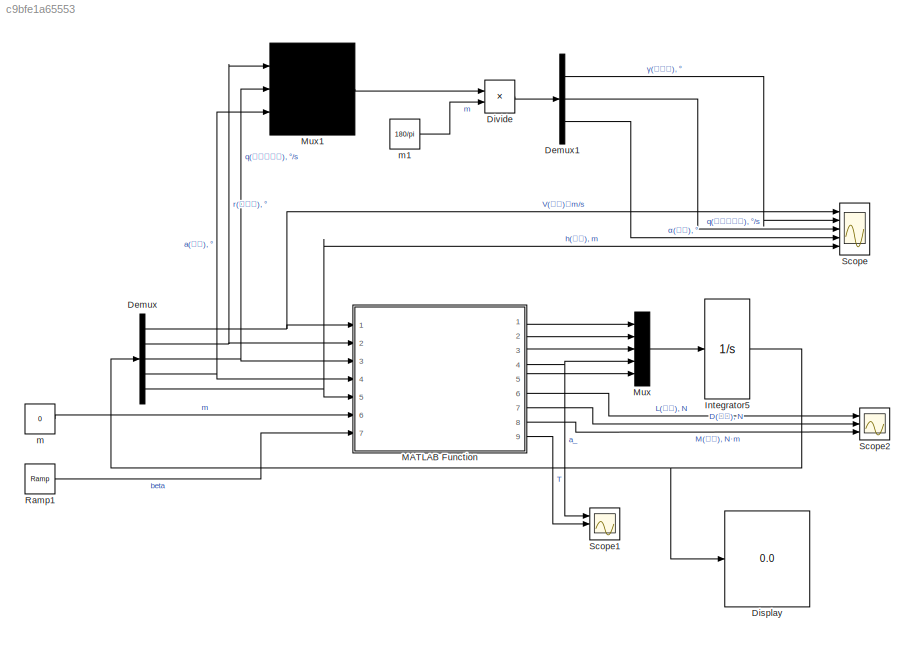
MODEL slx_c9bfe1a65553
KIND model
CONFIG AbsTol = auto
CONFIG EnableMultiTasking = off
CONFIG FixedStep = 0.
CONFIG MaxStep = auto
CONFIG MinStep = auto
CONFIG RelTol = 1e-3
CONFIG SampleTimeConstraint = Unconstrained
CONFIG Solver = VariableStepAuto
CONFIG SolverName = VariableStepAuto
CONFIG StartTime = 0.0
CONFIG StopTime = 10
BLOCK [Demux] Demux
  DisplayOption = bar
  Outputs = 5
  Ports = [1, 5]
BLOCK [Demux] Demux1
  DisplayOption = bar
  Outputs = 3
  Ports = [1, 3]
BLOCK [Display] Display
  Decimation = 1
  Ports = [1]
BLOCK [Product] Divide
  InputSameDT = off
  Inputs = **
  OutDataTypeStr = Inherit: Inherit via internal rule
  Ports = [2, 1]
  RndMeth = Floor
  SaturateOnIntegerOverflow = off
BLOCK [Integrator] Integrator5
  InitialCondition = [4590.3, 0*pi/180, 0*pi/180, 2.745*pi/180, 33528]
  Ports = [1, 1]
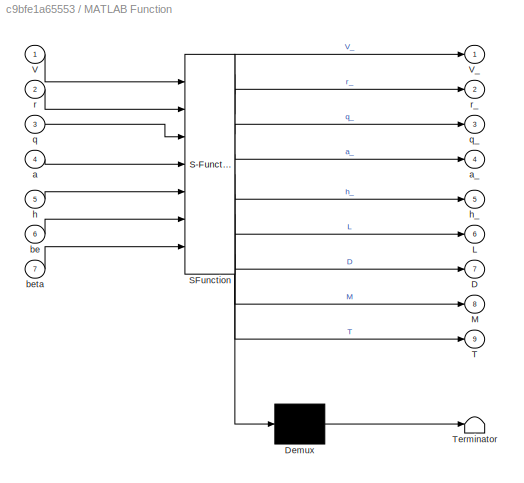
BLOCK [SubSystem] MATLAB Function
  ErrorFcn = Stateflow.Translate.translate
  PermitHierarchicalResolution = ExplicitOnly
  Ports = [7, 9]
  RequestExecContextInheritance = off
  SFBlockType = MATLAB Function
  TreatAsAtomicUnit = on
BLOCK [Demux] MATLAB Function/ Demux 
  Outputs = 1
  Ports = [1, 1]
BLOCK [S-Function] MATLAB Function/ SFunction 
  EnableBusSupport = on
  FunctionName = sf_sfun
  PortCounts = [7 10]
  Ports = [7, 10]
  SFcnIsStateOwnerBlock = off
  SFunctionDeploymentMode = off
  Tag = Stateflow S-Function 2
BLOCK [Terminator] MATLAB Function/ Terminator 
BLOCK [Outport] MATLAB Function/D
  IconDisplay = Port number
  Port = 7
BLOCK [Outport] MATLAB Function/L
  IconDisplay = Port number
  Port = 6
BLOCK [Outport] MATLAB Function/M
  IconDisplay = Port number
  Port = 8
BLOCK [Outport] MATLAB Function/T
  IconDisplay = Port number
  Port = 9
BLOCK [Inport] MATLAB Function/V
  IconDisplay = Port number
BLOCK [Outport] MATLAB Function/V_
  IconDisplay = Port number
BLOCK [Inport] MATLAB Function/a
  IconDisplay = Port number
  Port = 4
BLOCK [Outport] MATLAB Function/a_
  IconDisplay = Port number
  Port = 4
BLOCK [Inport] MATLAB Function/be
  IconDisplay = Port number
  Port = 6
BLOCK [Inport] MATLAB Function/beta
  IconDisplay = Port number
  Port = 7
BLOCK [Inport] MATLAB Function/h
  IconDisplay = Port number
  Port = 5
BLOCK [Outport] MATLAB Function/h_
  IconDisplay = Port number
  Port = 5
BLOCK [Inport] MATLAB Function/q
  IconDisplay = Port number
  Port = 3
BLOCK [Outport] MATLAB Function/q_
  IconDisplay = Port number
  Port = 3
BLOCK [Inport] MATLAB Function/r
  IconDisplay = Port number
  Port = 2
BLOCK [Outport] MATLAB Function/r_
  IconDisplay = Port number
  Port = 2
BLOCK [Mux] Mux
  DisplayOption = signals
  Inputs = 5
  Ports = [5, 1]
BLOCK [Mux] Mux1
  DisplayOption = signals
  Inputs = 3
  Ports = [3, 1]
BLOCK [Reference] Ramp1  REF=simulink/Sources/Ramp
  Ports = [0, 1]
  SourceBlock = simulink/Sources/Ramp
  SourceProductBaseCode = SL
  SourceProductName = Simulink
  SourceType = Ramp
BLOCK [Scope] Scope
  Floating = off
  NumInputPorts = 5
  Ports = [5]
  ScopeSpecificationString = Simulink.scopes.TimeScopeBlockCfg('CurrentConfiguration', extmgr.ConfigurationSet(extmgr.Configuration('Core','General UI',true,'FigureColor',[1 1 1]),extmgr.Configuration('Core','Source UI',true),extmgr.Configuration('Sources','WiredSimulink',true,'DataLoggingVariableName','ScopeData2'),extmgr.Configuration('Visuals','Time Domain',true,'SerializedDisplays',{struct('MinYLimReal','4494.93826','MaxY...<+5642ch>
BLOCK [Scope] Scope1
  Floating = off
  NumInputPorts = 3
  Ports = [3]
  ScopeSpecificationString = Simulink.scopes.TimeScopeBlockCfg('CurrentConfiguration', extmgr.ConfigurationSet(extmgr.Configuration('Core','General UI',true,'FigureColor',[1 1 1]),extmgr.Configuration('Core','Source UI',true),extmgr.Configuration('Sources','WiredSimulink',true,'DataLoggingVariableName','ScopeData1'),extmgr.Configuration('Visuals','Time Domain',true,'SerializedDisplays',{struct('MinYLimReal','-0.08279','MaxYLi...<+3941ch>
BLOCK [Scope] Scope2
  Floating = off
  NumInputPorts = 3
  Ports = [3]
  ScopeSpecificationString = Simulink.scopes.TimeScopeBlockCfg('CurrentConfiguration', extmgr.ConfigurationSet(extmgr.Configuration('Core','General UI',true,'FigureColor',[1 1 1]),extmgr.Configuration('Core','Source UI',true),extmgr.Configuration('Sources','WiredSimulink',true),extmgr.Configuration('Visuals','Time Domain',true,'SerializedDisplays',{struct('MinYLimReal','528224.99673','MaxYLimReal','8384749.68574','YLabelReal'...<+3957ch>
BLOCK [Constant] m
  Value = 0
BLOCK [Constant] m1
  Value = 180/pi
LINE Demux1:1 -> Scope:2
LINE Demux1:2 -> Scope:3
LINE Demux1:3 -> Scope:4
NET Demux:1 -> MATLAB Function:1, Scope:1
NET Demux:2 -> MATLAB Function:2, Mux1:1
NET Demux:3 -> MATLAB Function:3, Mux1:2
NET Demux:4 -> MATLAB Function:4, Mux1:3
NET Demux:5 -> MATLAB Function:5, Scope:5
LINE Divide:1 -> Demux1:1
NET Integrator5:1 -> Demux:1, Display:1
LINE MATLAB Function:1 -> Mux:1
LINE MATLAB Function:2 -> Mux:2
LINE MATLAB Function:3 -> Mux:3
NET MATLAB Function:4 -> Mux:4, Scope1:1
LINE MATLAB Function:5 -> Mux:5
LINE MATLAB Function:6 -> Scope2:1
LINE MATLAB Function:7 -> Scope2:2
LINE MATLAB Function:8 -> Scope2:3
LINE MATLAB Function:9 -> Scope1:2
LINE Mux1:1 -> Divide:1
LINE Mux:1 -> Integrator5:1
LINE Ramp1:1 -> MATLAB Function:7
LINE m1:1 -> Divide:2
LINE m:1 -> MATLAB Function:6
note: NET lines group one-source signal fan-out (src -> all destinations, sorted); 1:1 wires keep LINE
CHART MATLAB Function states=1 transitions=1
  STATE_LABEL 'eML_blk_kernel()'
  STATE_LABEL 'SCRIPT:\nfunction [V_, r_, q_, a_, h_, L, D, M, T] = HFVParams(V, r, q, a, h, be, beta)\n\n%% 参数\nm = 136820;\nIyy = 9490740;\nS = 334.73;\nc_ = 24.38;\nrho0 = 1.2266;\nrho = rho0*exp(-h/7315.2);\ng0 = 9.80665;\nr0 = 6356766;\ng = g0*(r0/(r0+h))^2;\nce = 0.0292;\nq__ = 0.5*rho*V^2;\n\n\n%% 气动力\nL = q__*S*0.6203*a;\nD = q__*S*(0.6450*a^2 + 0.0043378*a + 0.003772);\nCMa = -0.035*a^2 + 0.036617*a + 5.3261*10^(-6);\nCMq =...<+462ch>'
